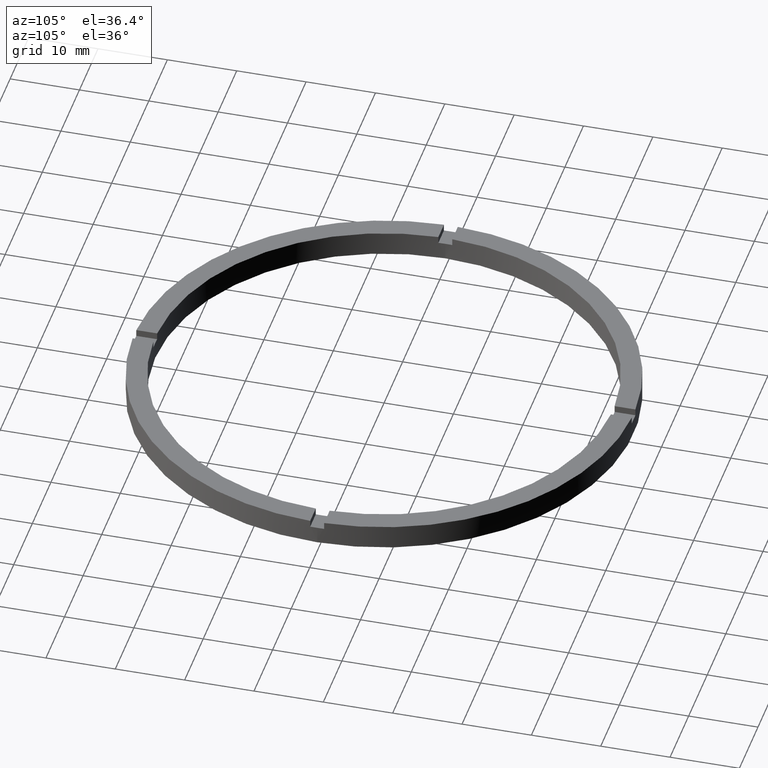
[diagram: clean part render]
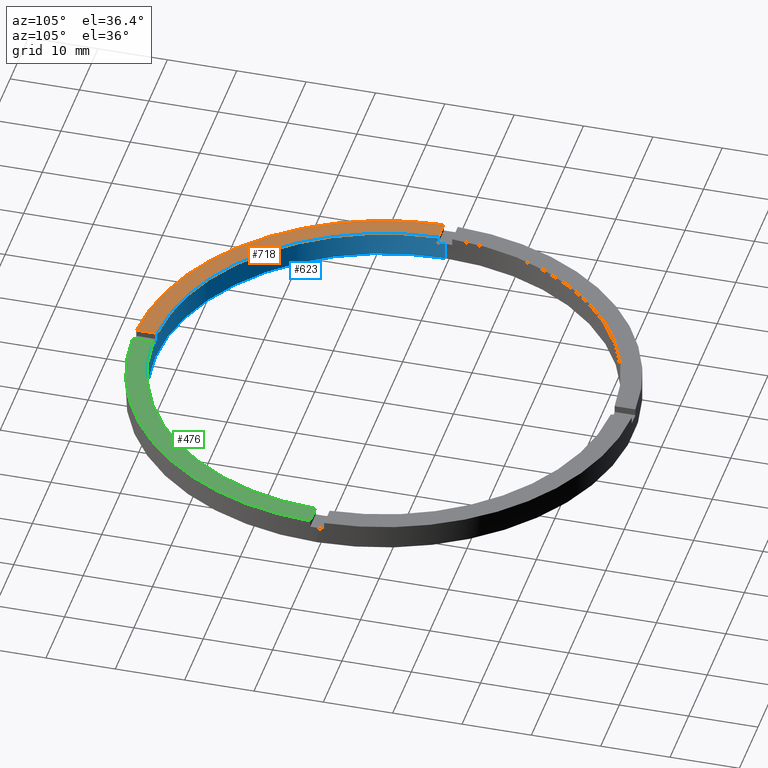
[diagram: same view with three faces highlighted in distinct colors, each labeled with its STEP entity id]
A machine part, auxiliary view with three faces highlighted in distinct colors.
Their STEP definitions:

[orange] entity #718 — the highlighted planar face has unit normal (0, 0, 1).
#16 = CARTESIAN_POINT ( 'NONE',  ( -32.98484500494128469, -1.000000000000026645, 3.500000000000000000 ) ) ;
#38 = VECTOR ( 'NONE', #376, 1000.000000000000000 ) ;
#49 = ORIENTED_EDGE ( 'NONE', *, *, #751, .F. ) ;
#62 = AXIS2_PLACEMENT_3D ( 'NONE', #733, #517, #484 ) ;
#72 = EDGE_CURVE ( 'NONE', #654, #573, #552, .T. ) ;
#77 = VERTEX_POINT ( 'NONE', #774 ) ;
#147 = FACE_OUTER_BOUND ( 'NONE', #296, .T. ) ;
#149 = CIRCLE ( 'NONE', #479, 33.00000000000000000 ) ;
#156 = AXIS2_PLACEMENT_3D ( 'NONE', #358, #765, #727 ) ;
#296 = EDGE_LOOP ( 'NONE', ( #302, #49, #700, #325 ) ) ;
#302 = ORIENTED_EDGE ( 'NONE', *, *, #72, .F. ) ;
#325 = ORIENTED_EDGE ( 'NONE', *, *, #721, .T. ) ;
#337 = PLANE ( 'NONE',  #62 ) ;
#358 = CARTESIAN_POINT ( 'NONE',  ( 0.000000000000000000, 0.000000000000000000, 3.500000000000000000 ) ) ;
#376 = DIRECTION ( 'NONE',  ( 1.301042606982605074E-16, -1.000000000000000000, 0.000000000000000000 ) ) ;
#403 = CARTESIAN_POINT ( 'NONE',  ( -1.000000000000160760, -32.98484500494128469, 3.500000000000000000 ) ) ;
#426 = CARTESIAN_POINT ( 'NONE',  ( 0.000000000000000000, 0.000000000000000000, 3.500000000000000000 ) ) ;
#479 = AXIS2_PLACEMENT_3D ( 'NONE', #426, #769, #766 ) ;
#484 = DIRECTION ( 'NONE',  ( 1.000000000000000000, 0.000000000000000000, -0.000000000000000000 ) ) ;
#504 = CARTESIAN_POINT ( 'NONE',  ( -1.000000000000160316, -35.98610843089315381, 3.500000000000000000 ) ) ;
#506 = CIRCLE ( 'NONE', #156, 36.00000000000000000 ) ;
#517 = DIRECTION ( 'NONE',  ( 0.000000000000000000, 0.000000000000000000, 1.000000000000000000 ) ) ;
#552 = LINE ( 'NONE', #656, #38 ) ;
#556 = EDGE_CURVE ( 'NONE', #77, #632, #563, .T. ) ;
#563 = LINE ( 'NONE', #625, #566 ) ;
#566 = VECTOR ( 'NONE', #755, 1000.000000000000000 ) ;
#573 = VERTEX_POINT ( 'NONE', #504 ) ;
#625 = CARTESIAN_POINT ( 'NONE',  ( -26.00000000000018119, -1.000000000000025091, 3.500000000000000000 ) ) ;
#632 = VERTEX_POINT ( 'NONE', #16 ) ;
#654 = VERTEX_POINT ( 'NONE', #403 ) ;
#656 = CARTESIAN_POINT ( 'NONE',  ( -1.000000000000161648, -26.00000000000017408, 3.500000000000000000 ) ) ;
#700 = ORIENTED_EDGE ( 'NONE', *, *, #556, .F. ) ;
#718 = ADVANCED_FACE ( 'NONE', ( #147 ), #337, .T. ) ;
#721 = EDGE_CURVE ( 'NONE', #77, #573, #506, .T. ) ;
#727 = DIRECTION ( 'NONE',  ( 1.000000000000000000, 0.000000000000000000, 0.000000000000000000 ) ) ;
#733 = CARTESIAN_POINT ( 'NONE',  ( 0.000000000000000000, 0.000000000000000000, 3.500000000000000000 ) ) ;
#751 = EDGE_CURVE ( 'NONE', #632, #654, #149, .T. ) ;
#755 = DIRECTION ( 'NONE',  ( 1.000000000000000000, 1.951563910473907735E-16, -0.000000000000000000 ) ) ;
#765 = DIRECTION ( 'NONE',  ( 0.000000000000000000, 0.000000000000000000, 1.000000000000000000 ) ) ;
#766 = DIRECTION ( 'NONE',  ( 1.000000000000000000, 0.000000000000000000, 0.000000000000000000 ) ) ;
#769 = DIRECTION ( 'NONE',  ( 0.000000000000000000, 0.000000000000000000, 1.000000000000000000 ) ) ;
#774 = CARTESIAN_POINT ( 'NONE',  ( -35.98610843089315381, -1.000000000000027089, 3.500000000000000000 ) ) ;

[blue] entity #623 — the highlighted cylindrical surface (partial cylindrical patch) has radius 33 mm, axis along (-0, -0, -1).
#6 = CARTESIAN_POINT ( 'NONE',  ( 0.000000000000000000, 0.000000000000000000, 0.000000000000000000 ) ) ;
#12 = CARTESIAN_POINT ( 'NONE',  ( -32.98484500494128469, -1.000000000000026645, 3.500000000000000000 ) ) ;
#13 = CIRCLE ( 'NONE', #56, 33.00000000000000000 ) ;
#16 = CARTESIAN_POINT ( 'NONE',  ( -32.98484500494128469, -1.000000000000026645, 3.500000000000000000 ) ) ;
#28 = DIRECTION ( 'NONE',  ( 0.000000000000000000, 0.000000000000000000, 1.000000000000000000 ) ) ;
#47 = VERTEX_POINT ( 'NONE', #480 ) ;
#51 = VECTOR ( 'NONE', #217, 1000.000000000000000 ) ;
#56 = AXIS2_PLACEMENT_3D ( 'NONE', #737, #130, #739 ) ;
#61 = CARTESIAN_POINT ( 'NONE',  ( -1.000000000000160760, -32.98484500494128469, 2.500000000000000000 ) ) ;
#78 = DIRECTION ( 'NONE',  ( -0.000000000000000000, -0.000000000000000000, -1.000000000000000000 ) ) ;
#82 = ORIENTED_EDGE ( 'NONE', *, *, #106, .T. ) ;
#90 = CIRCLE ( 'NONE', #262, 33.00000000000000000 ) ;
#91 = DIRECTION ( 'NONE',  ( -0.000000000000000000, -0.000000000000000000, -1.000000000000000000 ) ) ;
#93 = AXIS2_PLACEMENT_3D ( 'NONE', #644, #78, #323 ) ;
#101 = LINE ( 'NONE', #783, #399 ) ;
#102 = CARTESIAN_POINT ( 'NONE',  ( -1.000000000000160760, -32.98484500494128469, 3.500000000000000000 ) ) ;
#106 = EDGE_CURVE ( 'NONE', #405, #47, #532, .T. ) ;
#108 = CARTESIAN_POINT ( 'NONE',  ( 33.00000000000000000, 4.041334437186266200E-15, 0.000000000000000000 ) ) ;
#111 = AXIS2_PLACEMENT_3D ( 'NONE', #258, #28, #114 ) ;
#112 = VERTEX_POINT ( 'NONE', #487 ) ;
#114 = DIRECTION ( 'NONE',  ( 1.000000000000000000, 0.000000000000000000, 0.000000000000000000 ) ) ;
#115 = VERTEX_POINT ( 'NONE', #673 ) ;
#119 = DIRECTION ( 'NONE',  ( 0.000000000000000000, 0.000000000000000000, 1.000000000000000000 ) ) ;
#127 = LINE ( 'NONE', #162, #384 ) ;
#130 = DIRECTION ( 'NONE',  ( 0.000000000000000000, 0.000000000000000000, 1.000000000000000000 ) ) ;
#134 = FACE_OUTER_BOUND ( 'NONE', #432, .T. ) ;
#136 = VECTOR ( 'NONE', #119, 1000.000000000000000 ) ;
#149 = CIRCLE ( 'NONE', #479, 33.00000000000000000 ) ;
#160 = EDGE_CURVE ( 'NONE', #112, #624, #13, .T. ) ;
#162 = CARTESIAN_POINT ( 'NONE',  ( -33.00000000000000000, 0.000000000000000000, 3.500000000000000000 ) ) ;
#176 = DIRECTION ( 'NONE',  ( -0.000000000000000000, 0.000000000000000000, 1.000000000000000000 ) ) ;
#185 = VERTEX_POINT ( 'NONE', #438 ) ;
#189 = DIRECTION ( 'NONE',  ( 1.000000000000000000, 0.000000000000000000, 0.000000000000000000 ) ) ;
#197 = ORIENTED_EDGE ( 'NONE', *, *, #602, .F. ) ;
#216 = VECTOR ( 'NONE', #91, 1000.000000000000000 ) ;
#217 = DIRECTION ( 'NONE',  ( -0.000000000000000000, -0.000000000000000000, -1.000000000000000000 ) ) ;
#219 = DIRECTION ( 'NONE',  ( -0.000000000000000000, -0.000000000000000000, -1.000000000000000000 ) ) ;
#247 = DIRECTION ( 'NONE',  ( 1.000000000000000000, 0.000000000000000000, 0.000000000000000000 ) ) ;
#258 = CARTESIAN_POINT ( 'NONE',  ( 0.000000000000000000, 0.000000000000000000, 3.500000000000000000 ) ) ;
#261 = EDGE_CURVE ( 'NONE', #115, #711, #375, .T. ) ;
#262 = AXIS2_PLACEMENT_3D ( 'NONE', #687, #621, #247 ) ;
#278 = DIRECTION ( 'NONE',  ( -0.000000000000000000, -0.000000000000000000, -1.000000000000000000 ) ) ;
#304 = DIRECTION ( 'NONE',  ( 0.000000000000000000, 0.000000000000000000, 1.000000000000000000 ) ) ;
#305 = LINE ( 'NONE', #561, #313 ) ;
#313 = VECTOR ( 'NONE', #633, 1000.000000000000000 ) ;
#323 = DIRECTION ( 'NONE',  ( -1.000000000000000000, 0.000000000000000000, 0.000000000000000000 ) ) ;
#326 = CARTESIAN_POINT ( 'NONE',  ( 33.00000000000000000, 4.041334437186266200E-15, 2.500000000000000000 ) ) ;
#336 = ORIENTED_EDGE ( 'NONE', *, *, #678, .F. ) ;
#342 = ORIENTED_EDGE ( 'NONE', *, *, #418, .F. ) ;
#345 = EDGE_CURVE ( 'NONE', #435, #47, #101, .T. ) ;
#364 = VERTEX_POINT ( 'NONE', #689 ) ;
#375 = CIRCLE ( 'NONE', #598, 33.00000000000000000 ) ;
#379 = ORIENTED_EDGE ( 'NONE', *, *, #751, .T. ) ;
#384 = VECTOR ( 'NONE', #219, 1000.000000000000000 ) ;
#386 = CYLINDRICAL_SURFACE ( 'NONE', #93, 33.00000000000000000 ) ;
#392 = ORIENTED_EDGE ( 'NONE', *, *, #690, .T. ) ;
#399 = VECTOR ( 'NONE', #278, 1000.000000000000000 ) ;
#403 = CARTESIAN_POINT ( 'NONE',  ( -1.000000000000160760, -32.98484500494128469, 3.500000000000000000 ) ) ;
#405 = VERTEX_POINT ( 'NONE', #61 ) ;
#412 = LINE ( 'NONE', #102, #136 ) ;
#418 = EDGE_CURVE ( 'NONE', #459, #115, #127, .T. ) ;
#422 = DIRECTION ( 'NONE',  ( 1.000000000000000000, 0.000000000000000000, 0.000000000000000000 ) ) ;
#426 = CARTESIAN_POINT ( 'NONE',  ( 0.000000000000000000, 0.000000000000000000, 3.500000000000000000 ) ) ;
#432 = EDGE_LOOP ( 'NONE', ( #648, #704, #585, #342, #731, #336, #379, #472, #82, #697, #392, #197 ) ) ;
#434 = CARTESIAN_POINT ( 'NONE',  ( 0.9999999999998393507, -32.98484500494129179, 3.500000000000000000 ) ) ;
#435 = VERTEX_POINT ( 'NONE', #434 ) ;
#438 = CARTESIAN_POINT ( 'NONE',  ( -32.98484500494128469, -1.000000000000026645, 2.500000000000000000 ) ) ;
#456 = CARTESIAN_POINT ( 'NONE',  ( 33.00000000000000000, 4.041334437186266200E-15, 3.500000000000000000 ) ) ;
#459 = VERTEX_POINT ( 'NONE', #770 ) ;
#472 = ORIENTED_EDGE ( 'NONE', *, *, #481, .F. ) ;
#479 = AXIS2_PLACEMENT_3D ( 'NONE', #426, #769, #766 ) ;
#480 = CARTESIAN_POINT ( 'NONE',  ( 0.9999999999998393507, -32.98484500494129179, 2.500000000000000000 ) ) ;
#481 = EDGE_CURVE ( 'NONE', #405, #654, #412, .T. ) ;
#487 = CARTESIAN_POINT ( 'NONE',  ( 32.98484500494128469, -1.000000000000158096, 2.500000000000000000 ) ) ;
#499 = CIRCLE ( 'NONE', #111, 33.00000000000000000 ) ;
#532 = CIRCLE ( 'NONE', #715, 33.00000000000000000 ) ;
#559 = EDGE_CURVE ( 'NONE', #624, #711, #571, .T. ) ;
#561 = CARTESIAN_POINT ( 'NONE',  ( 32.98484500494128469, -1.000000000000158096, 3.500000000000000000 ) ) ;
#571 = LINE ( 'NONE', #456, #51 ) ;
#581 = CARTESIAN_POINT ( 'NONE',  ( 0.000000000000000000, 0.000000000000000000, 2.500000000000000000 ) ) ;
#585 = ORIENTED_EDGE ( 'NONE', *, *, #261, .F. ) ;
#598 = AXIS2_PLACEMENT_3D ( 'NONE', #6, #304, #189 ) ;
#602 = EDGE_CURVE ( 'NONE', #112, #364, #305, .T. ) ;
#621 = DIRECTION ( 'NONE',  ( 0.000000000000000000, 0.000000000000000000, 1.000000000000000000 ) ) ;
#623 = ADVANCED_FACE ( 'NONE', ( #134 ), #386, .F. ) ;
#624 = VERTEX_POINT ( 'NONE', #326 ) ;
#632 = VERTEX_POINT ( 'NONE', #16 ) ;
#633 = DIRECTION ( 'NONE',  ( 0.000000000000000000, 0.000000000000000000, 1.000000000000000000 ) ) ;
#637 = LINE ( 'NONE', #12, #216 ) ;
#644 = CARTESIAN_POINT ( 'NONE',  ( 0.000000000000000000, 0.000000000000000000, 3.500000000000000000 ) ) ;
#648 = ORIENTED_EDGE ( 'NONE', *, *, #160, .T. ) ;
#654 = VERTEX_POINT ( 'NONE', #403 ) ;
#673 = CARTESIAN_POINT ( 'NONE',  ( -33.00000000000000000, 0.000000000000000000, 0.000000000000000000 ) ) ;
#678 = EDGE_CURVE ( 'NONE', #632, #185, #637, .T. ) ;
#687 = CARTESIAN_POINT ( 'NONE',  ( 0.000000000000000000, 0.000000000000000000, 2.500000000000000000 ) ) ;
#689 = CARTESIAN_POINT ( 'NONE',  ( 32.98484500494128469, -1.000000000000158096, 3.500000000000000000 ) ) ;
#690 = EDGE_CURVE ( 'NONE', #435, #364, #499, .T. ) ;
#697 = ORIENTED_EDGE ( 'NONE', *, *, #345, .F. ) ;
#704 = ORIENTED_EDGE ( 'NONE', *, *, #559, .T. ) ;
#711 = VERTEX_POINT ( 'NONE', #108 ) ;
#715 = AXIS2_PLACEMENT_3D ( 'NONE', #581, #176, #422 ) ;
#731 = ORIENTED_EDGE ( 'NONE', *, *, #776, .T. ) ;
#737 = CARTESIAN_POINT ( 'NONE',  ( 0.000000000000000000, 0.000000000000000000, 2.500000000000000000 ) ) ;
#739 = DIRECTION ( 'NONE',  ( 1.000000000000000000, 0.000000000000000000, 0.000000000000000000 ) ) ;
#751 = EDGE_CURVE ( 'NONE', #632, #654, #149, .T. ) ;
#766 = DIRECTION ( 'NONE',  ( 1.000000000000000000, 0.000000000000000000, 0.000000000000000000 ) ) ;
#769 = DIRECTION ( 'NONE',  ( 0.000000000000000000, 0.000000000000000000, 1.000000000000000000 ) ) ;
#770 = CARTESIAN_POINT ( 'NONE',  ( -33.00000000000000000, 0.000000000000000000, 2.500000000000000000 ) ) ;
#776 = EDGE_CURVE ( 'NONE', #459, #185, #90, .T. ) ;
#783 = CARTESIAN_POINT ( 'NONE',  ( 0.9999999999998393507, -32.98484500494129179, 3.500000000000000000 ) ) ;

[green] entity #476 — the highlighted planar face has unit normal (0, 0, 1).
#19 = CARTESIAN_POINT ( 'NONE',  ( 0.000000000000000000, 0.000000000000000000, 3.500000000000000000 ) ) ;
#28 = DIRECTION ( 'NONE',  ( 0.000000000000000000, 0.000000000000000000, 1.000000000000000000 ) ) ;
#32 = DIRECTION ( 'NONE',  ( 0.000000000000000000, 0.000000000000000000, 1.000000000000000000 ) ) ;
#37 = DIRECTION ( 'NONE',  ( 0.000000000000000000, 0.000000000000000000, 1.000000000000000000 ) ) ;
#43 = ORIENTED_EDGE ( 'NONE', *, *, #690, .F. ) ;
#54 = ORIENTED_EDGE ( 'NONE', *, *, #407, .F. ) ;
#96 = LINE ( 'NONE', #380, #121 ) ;
#111 = AXIS2_PLACEMENT_3D ( 'NONE', #258, #28, #114 ) ;
#114 = DIRECTION ( 'NONE',  ( 1.000000000000000000, 0.000000000000000000, 0.000000000000000000 ) ) ;
#121 = VECTOR ( 'NONE', #442, 1000.000000000000000 ) ;
#191 = EDGE_LOOP ( 'NONE', ( #54, #43, #726, #568 ) ) ;
#229 = CIRCLE ( 'NONE', #754, 36.00000000000000000 ) ;
#258 = CARTESIAN_POINT ( 'NONE',  ( 0.000000000000000000, 0.000000000000000000, 3.500000000000000000 ) ) ;
#272 = CARTESIAN_POINT ( 'NONE',  ( 0.000000000000000000, 0.000000000000000000, 3.500000000000000000 ) ) ;
#300 = LINE ( 'NONE', #708, #560 ) ;
#364 = VERTEX_POINT ( 'NONE', #689 ) ;
#380 = CARTESIAN_POINT ( 'NONE',  ( 25.99999999999998934, -1.000000000000158540, 3.500000000000000000 ) ) ;
#402 = VERTEX_POINT ( 'NONE', #777 ) ;
#407 = EDGE_CURVE ( 'NONE', #364, #458, #96, .T. ) ;
#434 = CARTESIAN_POINT ( 'NONE',  ( 0.9999999999998393507, -32.98484500494129179, 3.500000000000000000 ) ) ;
#435 = VERTEX_POINT ( 'NONE', #434 ) ;
#442 = DIRECTION ( 'NONE',  ( 1.000000000000000000, 6.505213034913025371E-17, 0.000000000000000000 ) ) ;
#458 = VERTEX_POINT ( 'NONE', #740 ) ;
#476 = ADVANCED_FACE ( 'NONE', ( #643 ), #599, .T. ) ;
#478 = DIRECTION ( 'NONE',  ( 1.000000000000000000, 0.000000000000000000, 0.000000000000000000 ) ) ;
#498 = AXIS2_PLACEMENT_3D ( 'NONE', #19, #32, #527 ) ;
#499 = CIRCLE ( 'NONE', #111, 33.00000000000000000 ) ;
#527 = DIRECTION ( 'NONE',  ( 1.000000000000000000, 0.000000000000000000, -0.000000000000000000 ) ) ;
#548 = EDGE_CURVE ( 'NONE', #402, #435, #300, .T. ) ;
#560 = VECTOR ( 'NONE', #763, 1000.000000000000000 ) ;
#568 = ORIENTED_EDGE ( 'NONE', *, *, #686, .T. ) ;
#599 = PLANE ( 'NONE',  #498 ) ;
#643 = FACE_OUTER_BOUND ( 'NONE', #191, .T. ) ;
#686 = EDGE_CURVE ( 'NONE', #402, #458, #229, .T. ) ;
#689 = CARTESIAN_POINT ( 'NONE',  ( 32.98484500494128469, -1.000000000000158096, 3.500000000000000000 ) ) ;
#690 = EDGE_CURVE ( 'NONE', #435, #364, #499, .T. ) ;
#708 = CARTESIAN_POINT ( 'NONE',  ( 0.9999999999998384625, -26.00000000000017408, 3.500000000000000000 ) ) ;
#726 = ORIENTED_EDGE ( 'NONE', *, *, #548, .F. ) ;
#740 = CARTESIAN_POINT ( 'NONE',  ( 35.98610843089315381, -1.000000000000157874, 3.500000000000000000 ) ) ;
#754 = AXIS2_PLACEMENT_3D ( 'NONE', #272, #37, #478 ) ;
#763 = DIRECTION ( 'NONE',  ( -1.301042606982605074E-16, 1.000000000000000000, -0.000000000000000000 ) ) ;
#777 = CARTESIAN_POINT ( 'NONE',  ( 0.9999999999998397948, -35.98610843089316091, 3.500000000000000000 ) ) ;